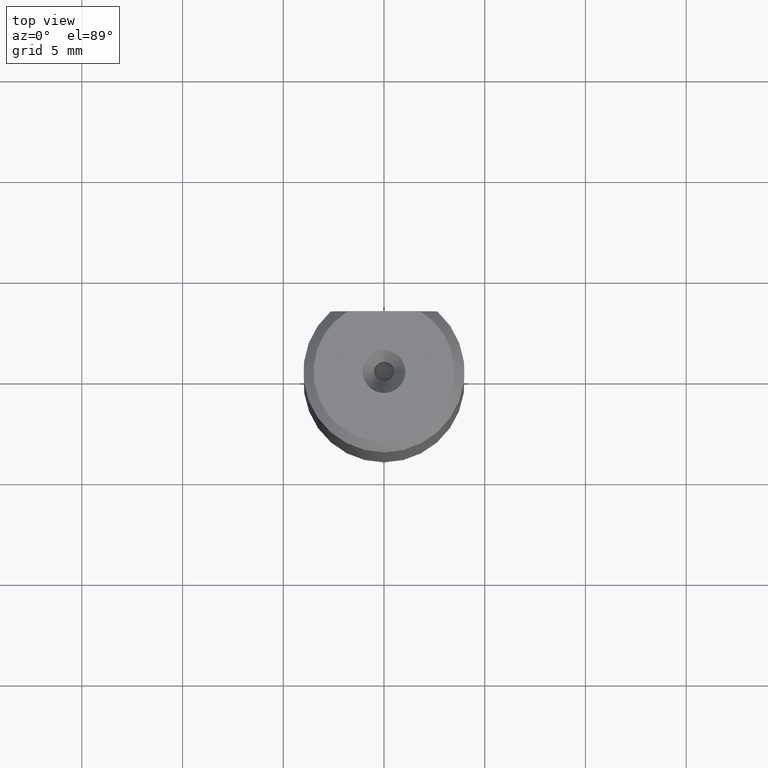
[diagram: clean part render]
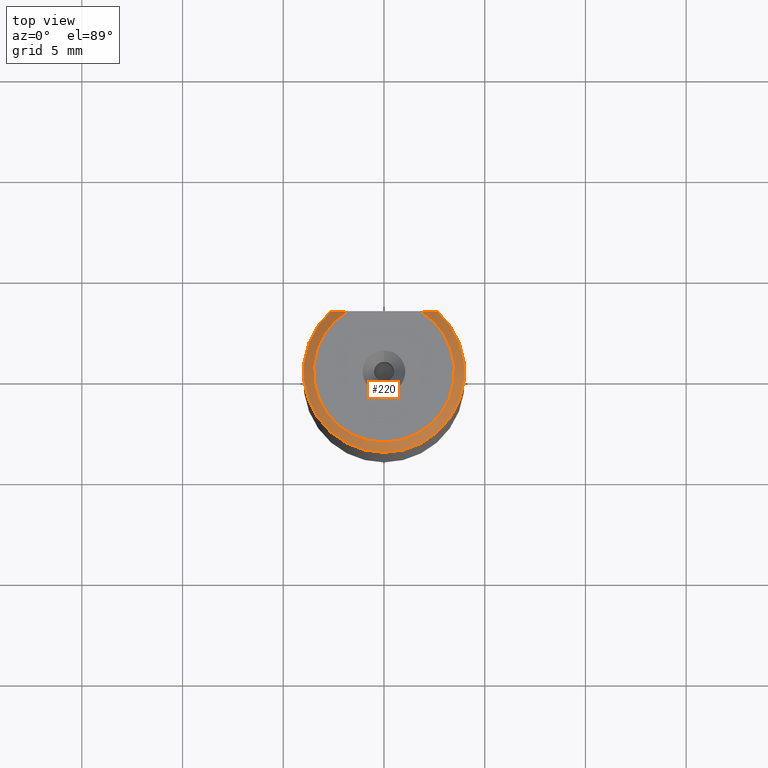
[diagram: same view with one face highlighted and labeled with its STEP entity id]
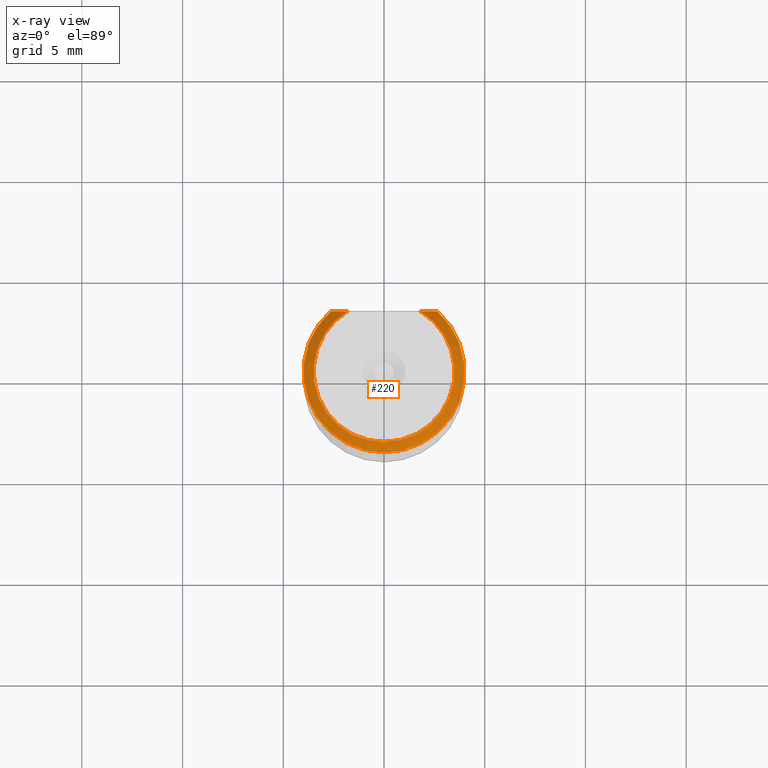
[diagram: x-ray of the same camera — body ghosted, the highlighted face saturated]
A machine part, top view. The second image highlights one B-rep face of the part: STEP entity #220.
The next image is the same camera in x-ray: the body ghosted, the highlighted face saturated — about 0% of this face is hidden behind the body in this view.
In plain terms, the highlighted conical surface has half-angle 45 deg.
Its self-contained STEP definition (entity closure, byte-faithful):
#46=CONICAL_SURFACE('',#1285,3.75,45.);
#130=FACE_OUTER_BOUND('',#312,.T.);
#162=B_SPLINE_CURVE_WITH_KNOTS('',3,(#1742,#1743,#1744,#1745),
 .UNSPECIFIED.,.F.,.F.,(4,4),(0.,1.),.UNSPECIFIED.);
#163=B_SPLINE_CURVE_WITH_KNOTS('',3,(#1746,#1747,#1748,#1749),
 .UNSPECIFIED.,.F.,.F.,(4,4),(0.,1.),.UNSPECIFIED.);
#220=ADVANCED_FACE('',(#130),#46,.T.);
#312=EDGE_LOOP('',(#660,#661,#662,#663,#664,#665));
#660=ORIENTED_EDGE('',*,*,#941,.F.);
#661=ORIENTED_EDGE('',*,*,#935,.T.);
#662=ORIENTED_EDGE('',*,*,#934,.T.);
#663=ORIENTED_EDGE('',*,*,#940,.F.);
#664=ORIENTED_EDGE('',*,*,#948,.F.);
#665=ORIENTED_EDGE('',*,*,#947,.F.);
#824=VERTEX_POINT('',#1729);
#825=VERTEX_POINT('',#1730);
#826=VERTEX_POINT('',#1732);
#830=VERTEX_POINT('',#1741);
#831=VERTEX_POINT('',#1750);
#835=VERTEX_POINT('',#1762);
#934=EDGE_CURVE('',#824,#825,#1103,.T.);
#935=EDGE_CURVE('',#826,#824,#1104,.T.);
#940=EDGE_CURVE('',#830,#825,#162,.T.);
#941=EDGE_CURVE('',#826,#831,#163,.T.);
#947=EDGE_CURVE('',#831,#835,#1107,.T.);
#948=EDGE_CURVE('',#835,#830,#1108,.T.);
#1103=CIRCLE('',#1217,3.5);
#1104=CIRCLE('',#1218,3.5);
#1107=CIRCLE('',#1226,4.);
#1108=CIRCLE('',#1227,4.);
#1217=AXIS2_PLACEMENT_3D('',#1728,#1375,#1376);
#1218=AXIS2_PLACEMENT_3D('',#1731,#1377,#1378);
#1226=AXIS2_PLACEMENT_3D('',#1761,#1398,#1399);
#1227=AXIS2_PLACEMENT_3D('',#1763,#1400,#1401);
#1285=AXIS2_PLACEMENT_3D('',#2018,#1555,#1556);
#1375=DIRECTION('',(0.,0.,-1.));
#1376=DIRECTION('',(0.,-1.,0.));
#1377=DIRECTION('',(0.,0.,-1.));
#1378=DIRECTION('',(0.515078753637684,0.857142857142874,0.));
#1398=DIRECTION('',(0.,0.,-1.));
#1399=DIRECTION('',(0.661437827766121,0.750000000000024,0.));
#1400=DIRECTION('',(0.,0.,-1.));
#1401=DIRECTION('',(0.,-1.,0.));
#1555=DIRECTION('',(0.,0.,-1.));
#1556=DIRECTION('',(0.,1.,-8.31716735057373E-17));
#1728=CARTESIAN_POINT('',(0.,0.,-2.39808173319E-14));
#1729=CARTESIAN_POINT('',(0.,-3.5,-2.30926389122E-14));
#1730=CARTESIAN_POINT('',(-1.80277563773199,3.,-1.199040866595E-14));
#1731=CARTESIAN_POINT('',(0.,0.,-2.30926389122E-14));
#1732=CARTESIAN_POINT('',(1.80277563773199,3.,-1.15463194561E-14));
#1741=CARTESIAN_POINT('',(-2.64575131106494,2.99999999999983,-0.500000000000094));
#1742=CARTESIAN_POINT('',(-2.64575131106494,2.99999999999983,-0.500000000000094));
#1743=CARTESIAN_POINT('',(-2.37326297622355,2.99999999999983,-0.319765907710981));
#1744=CARTESIAN_POINT('',(-2.09321403861178,3.,-0.149598649533703));
#1745=CARTESIAN_POINT('',(-1.80277563773199,3.,-1.199040866595E-14));
#1746=CARTESIAN_POINT('',(1.80277563773199,3.,-1.15463194561E-14));
#1747=CARTESIAN_POINT('',(2.09321403861178,3.,-0.149598649533702));
#1748=CARTESIAN_POINT('',(2.37326297622349,3.,-0.319765907711077));
#1749=CARTESIAN_POINT('',(2.64575131106488,3.,-0.500000000000189));
#1750=CARTESIAN_POINT('',(2.645751311065,3.,-0.500000000000135));
#1761=CARTESIAN_POINT('',(0.,0.,-0.5));
#1762=CARTESIAN_POINT('',(0.,-4.,-0.5));
#1763=CARTESIAN_POINT('',(0.,0.,-0.5));
#2018=CARTESIAN_POINT('',(0.,0.,-0.25));